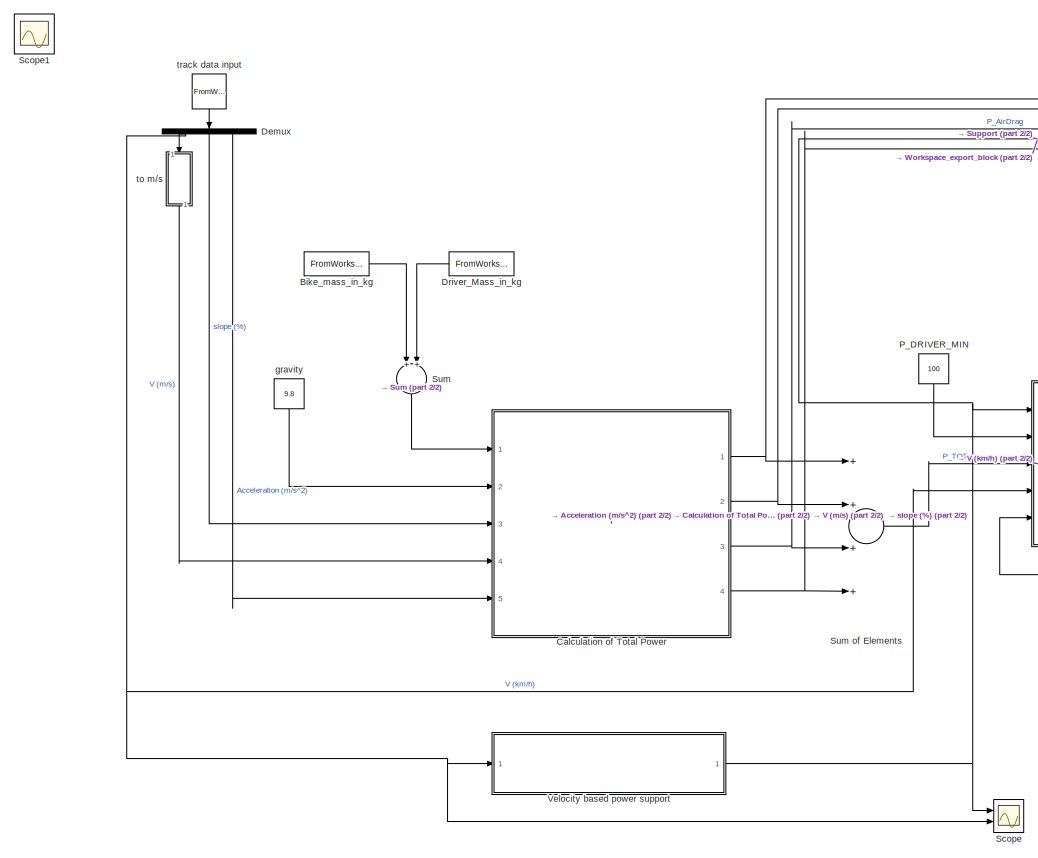
[diagram: root canvas - part 1/2, left side, full height]
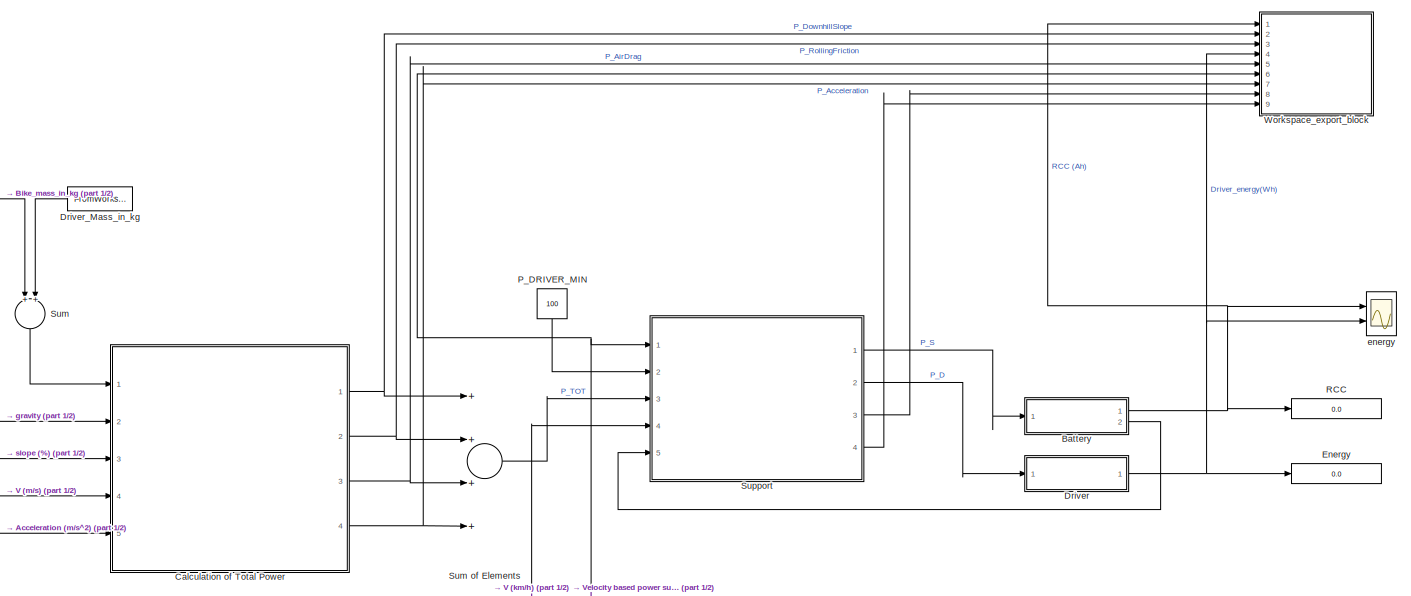
[diagram: root canvas - part 2/2, full width, middle band]
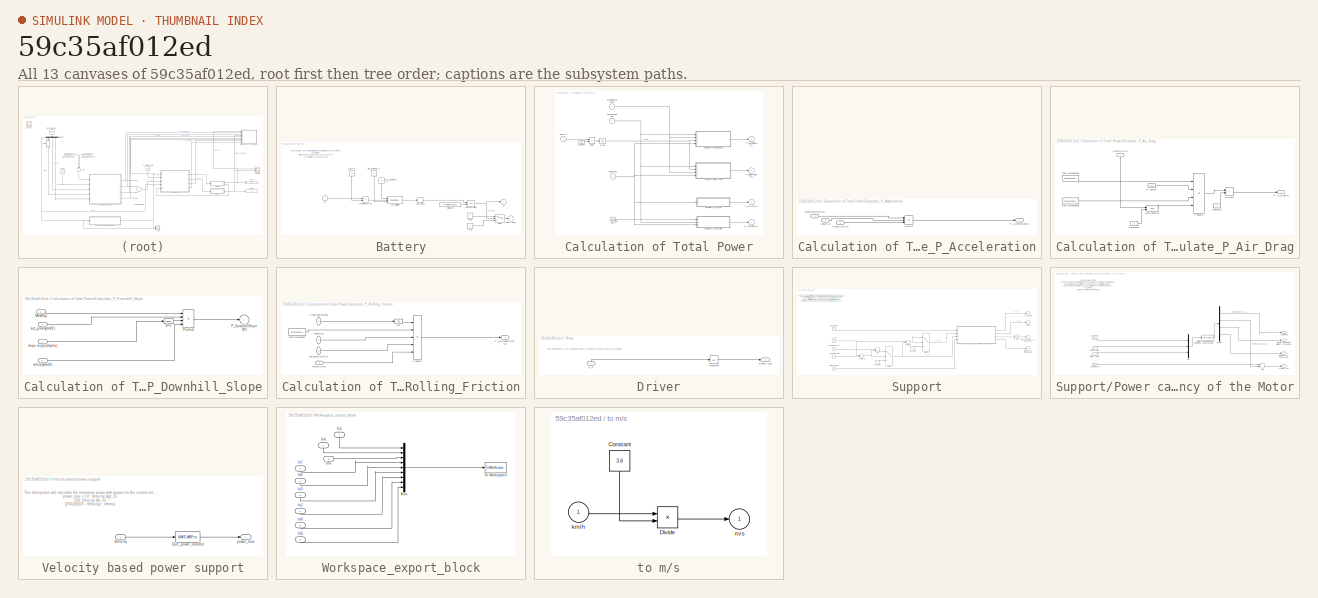
[diagram: thumbnail index - all 13 canvases of the model, root first then tree order]
MODEL slx_59c35af012ed
KIND model
CONFIG AbsTol = auto
CONFIG FixedStep = 0.001
CONFIG MaxStep = 0.001
CONFIG MinStep = 0.001
CONFIG RelTol = 1e-3
CONFIG SampleTimeConstraint = Unconstrained
CONFIG Solver = ode3
CONFIG SolverMode = Auto
CONFIG SolverName = ode3
CONFIG StartTime = 0.0
CONFIG StopTime = 1
BLOCK [SubSystem] Battery
  Ports = [1, 2]
  RequestExecContextInheritance = off
  Variant = off
BLOCK [Outport] Battery/Ah
  IconDisplay = Port number
BLOCK [Outport] Battery/Battery_Empty
  IconDisplay = Port number
  Port = 2
BLOCK [Constant] Battery/False
  Value = 0
BLOCK [FromWorkspace] Battery/Initial value 
  SampleTime = 0
  VariableName = Initial_Batt_capacity
  ZeroCross = on
BLOCK [Integrator] Battery/Integrator Limited
  InitialConditionSource = external
  LimitOutput = on
  LowerSaturationLimit = 0
  Ports = [2, 1]
  UpperSaturationLimit = 11
BLOCK [Constant] Battery/MAX_CURRENT (A)
  Value = 11
BLOCK [Constant] Battery/MIN_CURRENT (A)
  Value = 0
BLOCK [Inport] Battery/P_S
  IconDisplay = Port number
BLOCK [Switch] Battery/Switch
  Criteria = u2 > Threshold
  InputSameDT = off
  SaturateOnIntegerOverflow = off
BLOCK [Constant] Battery/True
BLOCK [Constant] Battery/U_BAT (V)
  Value = 36
BLOCK [UnaryMinus] Battery/Unary Minus
BLOCK [Product] Battery/compute current
  InputSameDT = off
  Inputs = */
  OutDataTypeStr = Inherit: Inherit via internal rule
  Ports = [2, 1]
  RndMeth = Floor
  SaturateOnIntegerOverflow = off
BLOCK [Reference] Battery/current limiter  REF=simulink/Discontinuities/Saturation
Dynamic
  Ports = [3, 1]
  SourceBlock = simulink/Discontinuities/Saturation\nDynamic
  SourceType = Saturation Dynamic
BLOCK [FromWorkspace] Bike_mass_in_kg
  SampleTime = 0
  VariableName = Bike_Mass
  ZeroCross = on
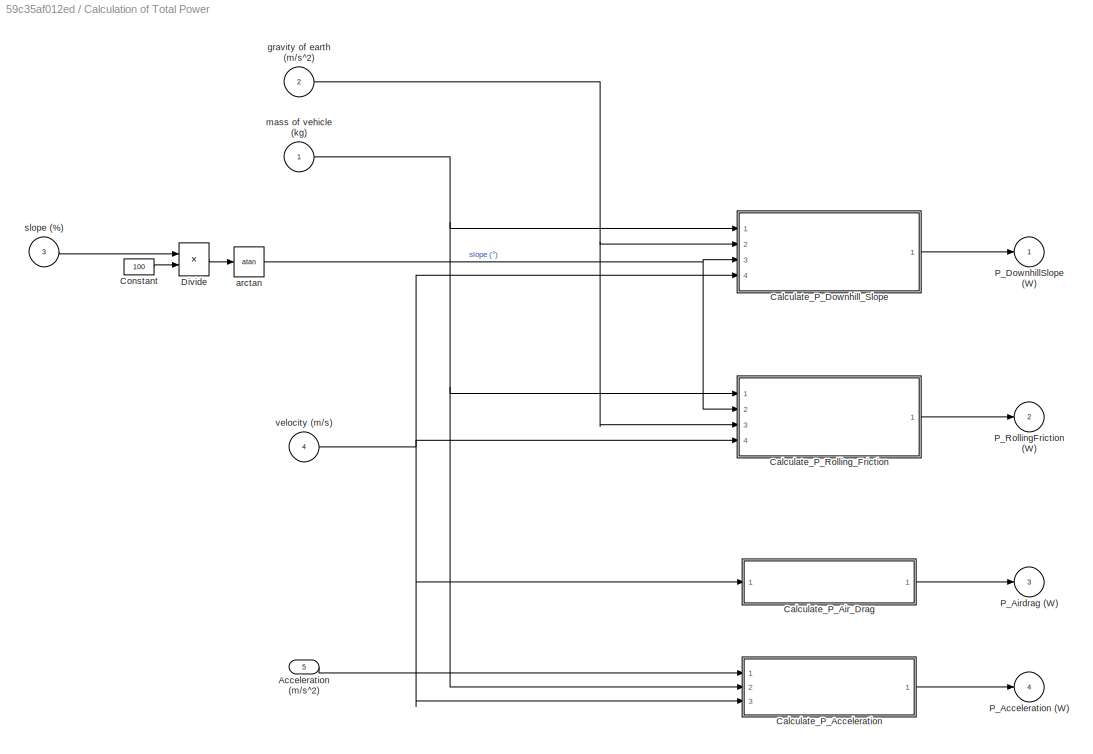
BLOCK [SubSystem] Calculation of Total Power
  Ports = [5, 4]
  RequestExecContextInheritance = off
  Variant = off
BLOCK [Inport] Calculation of Total Power/Acceleration (m//s^2)
  IconDisplay = Port number
  Port = 5
BLOCK [SubSystem] Calculation of Total Power/Calculate_P_Acceleration
  Ports = [3, 1]
  RequestExecContextInheritance = off
  Variant = off
BLOCK [Inport] Calculation of Total Power/Calculate_P_Acceleration/Mass(Kg)
  IconDisplay = Port number
  Port = 2
BLOCK [Product] Calculation of Total Power/Calculate_P_Acceleration/P=m.a.v
  InputSameDT = off
  Inputs = 3
  OutDataTypeStr = Inherit: Inherit via internal rule
  Ports = [3, 1]
  RndMeth = Floor
  SaturateOnIntegerOverflow = off
BLOCK [Outport] Calculation of Total Power/Calculate_P_Acceleration/P_Acceleration(W) 
  IconDisplay = Port number
BLOCK [Inport] Calculation of Total Power/Calculate_P_Acceleration/Velocity(m//s^2)
  IconDisplay = Port number
  Port = 3
BLOCK [Inport] Calculation of Total Power/Calculate_P_Acceleration/acceleration(m//s^2)
  IconDisplay = Port number
BLOCK [SubSystem] Calculation of Total Power/Calculate_P_Air_Drag
  Ports = [1, 1]
  RequestExecContextInheritance = off
  Variant = off
BLOCK [Constant] Calculation of Total Power/Calculate_P_Air_Drag/Air density
  Value = 1.225
BLOCK [Constant] Calculation of Total Power/Calculate_P_Air_Drag/Constant1
  Value = 2
BLOCK [Constant] Calculation of Total Power/Calculate_P_Air_Drag/Constant3
  Value = 3
BLOCK [Product] Calculation of Total Power/Calculate_P_Air_Drag/Divide1
  InputSameDT = off
  Inputs = */
  OutDataTypeStr = Inherit: Inherit via internal rule
  Ports = [2, 1]
BLOCK [FromWorkspace] Calculation of Total Power/Calculate_P_Air_Drag/From Workspace1
  SampleTime = 0
  VariableName = coeff_airdrag
  ZeroCross = on
BLOCK [FromWorkspace] Calculation of Total Power/Calculate_P_Air_Drag/From Workspace2
  SampleTime = 0
  VariableName = frontal_area
  ZeroCross = on
BLOCK [Math] Calculation of Total Power/Calculate_P_Air_Drag/Math Function
  Operator = pow
  Ports = [2, 1]
BLOCK [Outport] Calculation of Total Power/Calculate_P_Air_Drag/P_AirDrag(W) 
  IconDisplay = Port number
BLOCK [Product] Calculation of Total Power/Calculate_P_Air_Drag/Product3
  InputSameDT = off
  Inputs = 4
  OutDataTypeStr = Inherit: Inherit via internal rule
  Ports = [4, 1]
  RndMeth = Floor
  SaturateOnIntegerOverflow = off
BLOCK [Inport] Calculation of Total Power/Calculate_P_Air_Drag/Velocity(m//s)
  IconDisplay = Port number
BLOCK [SubSystem] Calculation of Total Power/Calculate_P_Downhill_Slope
  Ports = [4, 1]
  RequestExecContextInheritance = off
  Variant = off
BLOCK [Inport] Calculation of Total Power/Calculate_P_Downhill_Slope/Mass(Kg)
  IconDisplay = Port number
BLOCK [Outport] Calculation of Total Power/Calculate_P_Downhill_Slope/P_DownhillSlope (W)
  IconDisplay = Port number
BLOCK [Product] Calculation of Total Power/Calculate_P_Downhill_Slope/Product
  InputSameDT = off
  Inputs = 4
  OutDataTypeStr = Inherit: Inherit via internal rule
  Ports = [4, 1]
  RndMeth = Floor
  SaturateOnIntegerOverflow = off
BLOCK [Inport] Calculation of Total Power/Calculate_P_Downhill_Slope/acc_gravity(m//s^2)
  IconDisplay = Port number
  Port = 2
BLOCK [Trigonometry] Calculation of Total Power/Calculate_P_Downhill_Slope/sine
  Ports = [1, 1]
BLOCK [Inport] Calculation of Total Power/Calculate_P_Downhill_Slope/slope angle(alpha)
  IconDisplay = Port number
  Port = 3
BLOCK [Inport] Calculation of Total Power/Calculate_P_Downhill_Slope/velocity(m//s^2)
  IconDisplay = Port number
  Port = 4
BLOCK [SubSystem] Calculation of Total Power/Calculate_P_Rolling_Friction
  Ports = [4, 1]
  RequestExecContextInheritance = off
  Variant = off
BLOCK [FromWorkspace] Calculation of Total Power/Calculate_P_Rolling_Friction/From Workspace
  SampleTime = 0
  VariableName = coeff_friction
  ZeroCross = on
BLOCK [Inport] Calculation of Total Power/Calculate_P_Rolling_Friction/Mass(Kg)
  IconDisplay = Port number
BLOCK [Outport] Calculation of Total Power/Calculate_P_Rolling_Friction/P_RollingFriction (W)
  IconDisplay = Port number
BLOCK [Product] Calculation of Total Power/Calculate_P_Rolling_Friction/Product2
  InputSameDT = off
  Inputs = 5
  OutDataTypeStr = Inherit: Inherit via internal rule
  Ports = [5, 1]
  RndMeth = Floor
  SaturateOnIntegerOverflow = off
BLOCK [Inport] Calculation of Total Power/Calculate_P_Rolling_Friction/Slope angle(alpha)
  IconDisplay = Port number
  Port = 2
BLOCK [Inport] Calculation of Total Power/Calculate_P_Rolling_Friction/acc_gravity(m//s^2)
  IconDisplay = Port number
  Port = 3
BLOCK [Trigonometry] Calculation of Total Power/Calculate_P_Rolling_Friction/cos
  Operator = cos
  Ports = [1, 1]
BLOCK [Inport] Calculation of Total Power/Calculate_P_Rolling_Friction/velocity(m//s)
  IconDisplay = Port number
  Port = 4
BLOCK [Constant] Calculation of Total Power/Constant
  Value = 100
BLOCK [Product] Calculation of Total Power/Divide
  InputSameDT = off
  Inputs = */
  OutDataTypeStr = Inherit: Inherit via internal rule
  Ports = [2, 1]
  RndMeth = Floor
  SaturateOnIntegerOverflow = off
BLOCK [Outport] Calculation of Total Power/P_Acceleration (W)
  IconDisplay = Port number
  Port = 4
BLOCK [Outport] Calculation of Total Power/P_Airdrag (W)
  IconDisplay = Port number
  Port = 3
BLOCK [Outport] Calculation of Total Power/P_DownhillSlope (W)
  IconDisplay = Port number
BLOCK [Outport] Calculation of Total Power/P_RollingFriction (W)
  IconDisplay = Port number
  Port = 2
BLOCK [Trigonometry] Calculation of Total Power/arctan
  Operator = atan
  Ports = [1, 1]
BLOCK [Inport] Calculation of Total Power/gravity of earth (m//s^2) 
  IconDisplay = Port number
  Port = 2
BLOCK [Inport] Calculation of Total Power/mass of vehicle (kg)
  IconDisplay = Port number
BLOCK [Inport] Calculation of Total Power/slope (%)
  IconDisplay = Port number
  Port = 3
BLOCK [Inport] Calculation of Total Power/velocity (m//s)
  IconDisplay = Port number
  Port = 4
BLOCK [Demux] Demux
  DisplayOption = bar
  Outputs = 3
  Ports = [1, 3]
BLOCK [SubSystem] Driver
  Ports = [1, 1]
  RequestExecContextInheritance = off
  Variant = off
BLOCK [Outport] Driver/Energy (Wh)
  IconDisplay = Port number
BLOCK [Integrator] Driver/Integrator 
  LowerSaturationLimit = 0
  Ports = [1, 1]
  UpperSaturationLimit = 400
BLOCK [Inport] Driver/P_D
  IconDisplay = Port number
BLOCK [FromWorkspace] Driver_Mass_in_kg
  SampleTime = 0
  VariableName = Driver_Mass
  ZeroCross = on
BLOCK [Display] Energy
  Decimation = 1
  Ports = [1]
BLOCK [Constant] P_DRIVER_MIN
  Value = 100
BLOCK [Display] RCC
  Decimation = 1
  Ports = [1]
BLOCK [Scope] Scope
  NumInputPorts = 2
  Ports = [2]
  ScopeSpecificationString = C++SS(StrPVP('Location','[483, 185, 1439, 605]'),StrPVP('Open','off'),MxPVP('AxesTitles',24,'struct(''axes1'',''%<SignalLabel>'',''axes2'',''%<SignalLabel>'')'),MxPVP('ScopeGraphics',28,'struct(''FigureColor'',''[0.156862745098039 0.156862745098039 0.156862745098039]'',''AxesColor'',''[0 0 0]'',''AxesTickColor'',''[0.686274509803922 0.686274509803922 0.686274509803922]'',''LineColors'',''[1 1 0;1 ...<+422ch>
BLOCK [Scope] Scope1
  IOType = viewer
  Ports = []
  ScopeSpecificationString = C++SS(StrPVP('Location','[659, 344, 1617, 1140]'),StrPVP('Open','off'),MxPVP('AxesTitles',24,'struct(''axes1'',''%<SignalLabel>'',''axes2'',''%<SignalLabel>'',''axes3'',''%<SignalLabel>'',''axes4'',''%<SignalLabel>'',''axes5'',''%<SignalLabel>'')'),StrPVP('ShowDataMarkers','off'),StrPVP('ShowLegends','on'),StrPVP('TimeRange','2'),StrPVP('YMin','-3.22413~-8.58249~-525.14304~-31.25~-10.01716'),StrPV...<+245ch>
BLOCK [Sum] Sum 
  InputSameDT = off
  OutDataTypeStr = Inherit: Inherit via internal rule
  Ports = [2, 1]
  SaturateOnIntegerOverflow = off
BLOCK [Sum] Sum of Elements
  InputSameDT = off
  Inputs = ++++
  OutDataTypeStr = Inherit: Inherit via internal rule
  Ports = [4, 1]
  SaturateOnIntegerOverflow = off
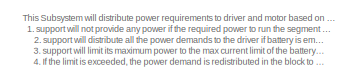
[diagram: Support - part 1/3, top left region]
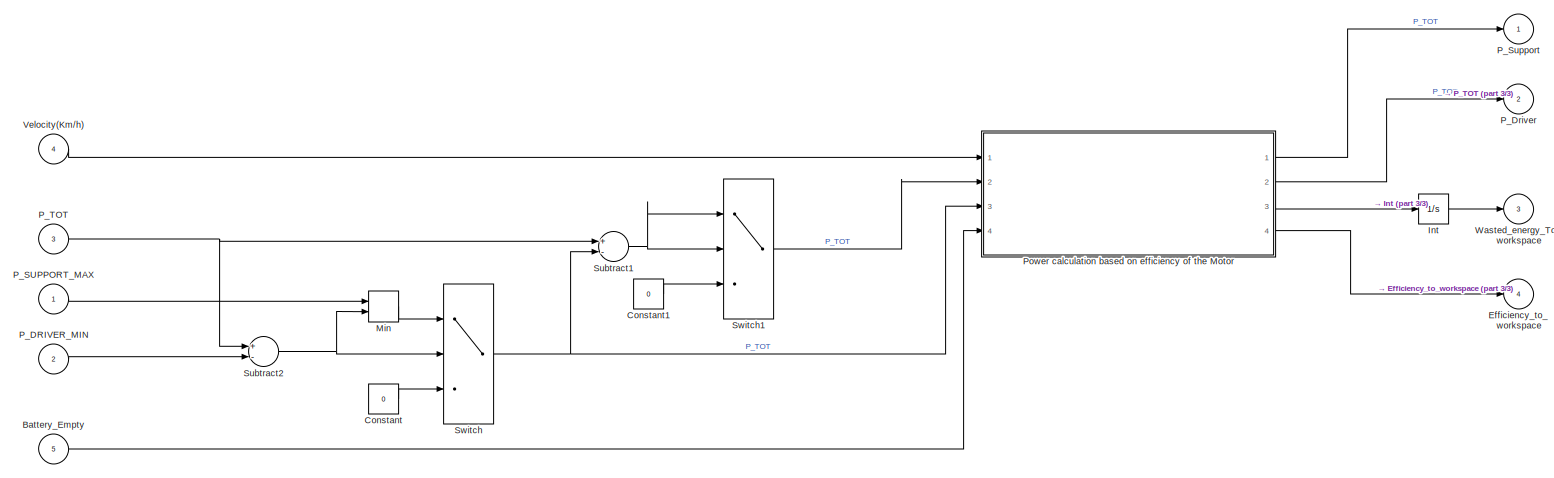
[diagram: Support - part 2/3, most of the canvas]
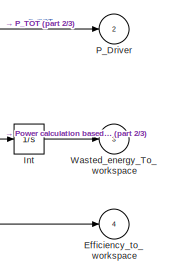
[diagram: Support - part 3/3, middle right region]
BLOCK [SubSystem] Support
  Ports = [5, 4]
  RequestExecContextInheritance = off
  Variant = off
BLOCK [Inport] Support/Battery_Empty
  IconDisplay = Port number
  Port = 5
BLOCK [Constant] Support/Constant
  Value = 0
BLOCK [Constant] Support/Constant1
  Value = 0
BLOCK [Outport] Support/Efficiency_to_workspace
  IconDisplay = Port number
  Port = 4
BLOCK [Integrator] Support/Int
  Ports = [1, 1]
BLOCK [MinMax] Support/Min
  InputSameDT = off
  Inputs = 2
  Ports = [2, 1]
  SaturateOnIntegerOverflow = off
BLOCK [Inport] Support/P_DRIVER_MIN
  IconDisplay = Port number
  Port = 2
BLOCK [Outport] Support/P_Driver
  IconDisplay = Port number
  Port = 2
BLOCK [Inport] Support/P_SUPPORT_MAX
  IconDisplay = Port number
BLOCK [Outport] Support/P_Support
  IconDisplay = Port number
BLOCK [Inport] Support/P_TOT
  IconDisplay = Port number
  Port = 3
BLOCK [SubSystem] Support/Power calculation based on efficiency of the Motor
  Ports = [4, 4]
  RequestExecContextInheritance = off
  Variant = off
BLOCK [Sum] Support/Power calculation based on efficiency of the Motor/Add
  InputSameDT = off
  OutDataTypeStr = Inherit: Inherit via internal rule
  Ports = [2, 1]
  SaturateOnIntegerOverflow = off
BLOCK [Inport] Support/Power calculation based on efficiency of the Motor/Battery_Empty
  IconDisplay = Port number
  Port = 4
BLOCK [Demux] Support/Power calculation based on efficiency of the Motor/Demux
  DisplayOption = bar
  Ports = [1, 4]
BLOCK [MATLABFcn] Support/Power calculation based on efficiency of the Motor/Efficiency based on RPM outputs instantaneous power
  MATLABFcn = RPM_motor_power(u(1),u(2),u(3))
  Output1D = off
  Ports = [1, 1]
BLOCK [Mux] Support/Power calculation based on efficiency of the Motor/Mux
  DisplayOption = bar
  Inputs = 3
  Ports = [3, 1]
BLOCK [Outport] Support/Power calculation based on efficiency of the Motor/P_Demand
  IconDisplay = Port number
BLOCK [Inport] Support/Power calculation based on efficiency of the Motor/P_Driver_in
  IconDisplay = Port number
  Port = 2
BLOCK [Outport] Support/Power calculation based on efficiency of the Motor/P_Driver_out
  IconDisplay = Port number
  Port = 2
BLOCK [Inport] Support/Power calculation based on efficiency of the Motor/P_Support
  IconDisplay = Port number
  Port = 3
BLOCK [Outport] Support/Power calculation based on efficiency of the Motor/Power_loss due to efficiency To_workspace
  IconDisplay = Port number
  Port = 3
BLOCK [Inport] Support/Power calculation based on efficiency of the Motor/Velocity(km//h)
  IconDisplay = Port number
BLOCK [Outport] Support/Power calculation based on efficiency of the Motor/effeciency_to_workspace
  IconDisplay = Port number
  Port = 4
BLOCK [Sum] Support/Subtract1
  InputSameDT = off
  Inputs = +-
  OutDataTypeStr = Inherit: Inherit via internal rule
  Ports = [2, 1]
  SaturateOnIntegerOverflow = off
BLOCK [Sum] Support/Subtract2
  InputSameDT = off
  Inputs = +-
  OutDataTypeStr = Inherit: Inherit via internal rule
  Ports = [2, 1]
  SaturateOnIntegerOverflow = off
BLOCK [Switch] Support/Switch
  Criteria = u2 > Threshold
  InputSameDT = off
  SaturateOnIntegerOverflow = off
BLOCK [Switch] Support/Switch1
  Criteria = u2 > Threshold
  InputSameDT = off
  SaturateOnIntegerOverflow = off
BLOCK [Inport] Support/Velocity(Km//h)
  IconDisplay = Port number
  Port = 4
BLOCK [Outport] Support/Wasted_energy_To_workspace
  IconDisplay = Port number
  Port = 3
BLOCK [SubSystem] Velocity based power support
  Ports = [1, 1]
  RequestExecContextInheritance = off
  Variant = off
BLOCK [MATLABFcn] Velocity based power support/Calc_power_needed
  MATLABFcn = calcpow
  OutputDimensions = 1
  Ports = [1, 1]
BLOCK [Inport] Velocity based power support/Velocity
  IconDisplay = Port number
BLOCK [Outport] Velocity based power support/power_max
  IconDisplay = Port number
BLOCK [SubSystem] Workspace_export_block
  Ports = [9]
  RequestExecContextInheritance = off
  Variant = off
BLOCK [Inport] Workspace_export_block/In1
  IconDisplay = Port number
BLOCK [Inport] Workspace_export_block/In2
  IconDisplay = Port number
  Port = 2
BLOCK [Inport] Workspace_export_block/In3
  IconDisplay = Port number
  Port = 3
BLOCK [Inport] Workspace_export_block/In4
  IconDisplay = Port number
  Port = 4
BLOCK [Inport] Workspace_export_block/In5
  IconDisplay = Port number
  Port = 5
BLOCK [Inport] Workspace_export_block/In6
  IconDisplay = Port number
  Port = 6
BLOCK [Inport] Workspace_export_block/In7
  IconDisplay = Port number
  Port = 7
BLOCK [Inport] Workspace_export_block/In8
  IconDisplay = Port number
  Port = 8
BLOCK [Inport] Workspace_export_block/In9
  IconDisplay = Port number
  Port = 9
BLOCK [Mux] Workspace_export_block/Mux
  DisplayOption = bar
  Inputs = 9
  Ports = [9, 1]
BLOCK [ToWorkspace] Workspace_export_block/To Workspace
  MaxDataPoints = inf
  Ports = [1]
  SampleTime = -1
  SaveFormat = Timeseries
  VariableName = simout
BLOCK [Scope] energy
  NumInputPorts = 2
  Ports = [2]
  ScopeSpecificationString = C++SS(StrPVP('Location','[413, 714, 1365, 1134]'),StrPVP('Open','off'),MxPVP('AxesTitles',24,'struct(''axes1'',''%<SignalLabel>'',''axes2'',''%<SignalLabel>'')'),MxPVP('ScopeGraphics',28,'struct(''FigureColor'',''[0.156862745098039 0.156862745098039 0.156862745098039]'',''AxesColor'',''[0 0 0]'',''AxesTickColor'',''[0.686274509803922 0.686274509803922 0.686274509803922]'',''LineColors'',''[1 1 0;1...<+415ch>
BLOCK [Constant] gravity
  Value = 9.8
BLOCK [SubSystem] to m//s
  Ports = [1, 1]
  RequestExecContextInheritance = off
  Variant = off
BLOCK [Constant] to m//s/Constant
  Value = 3.6
BLOCK [Product] to m//s/Divide
  InputSameDT = off
  Inputs = */
  OutDataTypeStr = Inherit: Inherit via internal rule
  Ports = [2, 1]
  RndMeth = Floor
  SaturateOnIntegerOverflow = off
BLOCK [Inport] to m//s/km//h
  IconDisplay = Port number
BLOCK [Outport] to m//s/m//s
  IconDisplay = Port number
BLOCK [FromWorkspace] track data input
  OutputAfterFinalValue = Setting to zero
  SampleTime = 0
  VariableName = simin
  ZeroCross = on
ANNOTATION Battery: The basic battery subsystem is modified to send a flag to the support system when battery is empty ( RCC = 0.0 ) Assumptions: Battery is a Bosch powerpack 400 (396Wh 36V) current limit to 11A (@ 1C discharge)
ANNOTATION Driver: This subsystem is to integrate power to display driver energy as a graph.
ANNOTATION Support: This Subsystem will distribute power requirements to driver and motor based on the following assumptions: 1. support will not provide any power if the required power to run the segment is below the driver's minimum power. 2. support will distribute all the power demands to the driver if battery is empty. 3. support will limit its maximum power to the max current limit of the battery based on the p...<+261ch>
ANNOTATION Support/Power calculation based on efficiency of the Motor: Subsystem description: This Subsystem calculates total power needed to overcome the losses of the motor and to support the driver. when the total power post efficiency exceeds the current limit of the battery system then the resulting power is recalculated and the difference prior to efficiency calculation has to be provided by the driver. Assumptions: 1. efficiency of motor at max RPM is 0.85 2. ...<+248ch>
ANNOTATION Velocity based power support: This Subsystem will calculate the maximum power with respect to the current velocity of the system as a linear function. power_max = { 0 : Velocity > 25 250: Velocity < 22 (250/(3))*(25 - Velocity) : others}
LINE Battery/False:1 -> Battery/Switch:1
LINE Battery/Initial value :1 -> Battery/Integrator Limited:2
NET Battery/Integrator Limited:1 -> Battery/Ah:1, Battery/Switch:2
LINE Battery/MAX_CURRENT (A):1 -> Battery/current limiter:1
LINE Battery/MIN_CURRENT (A):1 -> Battery/current limiter:3
LINE Battery/P_S:1 -> Battery/compute current:1
LINE Battery/Switch:1 -> Battery/Battery_Empty:1
LINE Battery/True:1 -> Battery/Switch:3
LINE Battery/U_BAT (V):1 -> Battery/compute current:2
LINE Battery/Unary Minus:1 -> Battery/Integrator Limited:1
LINE Battery/compute current:1 -> Battery/current limiter:2
LINE Battery/current limiter:1 -> Battery/Unary Minus:1
NET Battery:1 -> RCC:1, Workspace_export_block:1, energy:1
LINE Battery:2 -> Support:5
LINE Bike_mass_in_kg:1 -> Sum :1
LINE Calculation of Total Power/Acceleration (m//s^2):1 -> Calculation of Total Power/Calculate_P_Acceleration:1
LINE Calculation of Total Power/Calculate_P_Acceleration/Mass(Kg):1 -> Calculation of Total Power/Calculate_P_Acceleration/P=m.a.v:2
LINE Calculation of Total Power/Calculate_P_Acceleration/P=m.a.v:1 -> Calculation of Total Power/Calculate_P_Acceleration/P_Acceleration(W) :1
LINE Calculation of Total Power/Calculate_P_Acceleration/Velocity(m//s^2):1 -> Calculation of Total Power/Calculate_P_Acceleration/P=m.a.v:3
LINE Calculation of Total Power/Calculate_P_Acceleration/acceleration(m//s^2):1 -> Calculation of Total Power/Calculate_P_Acceleration/P=m.a.v:1
LINE Calculation of Total Power/Calculate_P_Acceleration:1 -> Calculation of Total Power/P_Acceleration (W):1
LINE Calculation of Total Power/Calculate_P_Air_Drag/Air density:1 -> Calculation of Total Power/Calculate_P_Air_Drag/Product3:2
LINE Calculation of Total Power/Calculate_P_Air_Drag/Constant1:1 -> Calculation of Total Power/Calculate_P_Air_Drag/Divide1:2
LINE Calculation of Total Power/Calculate_P_Air_Drag/Constant3:1 -> Calculation of Total Power/Calculate_P_Air_Drag/Math Function:2
LINE Calculation of Total Power/Calculate_P_Air_Drag/Divide1:1 -> Calculation of Total Power/Calculate_P_Air_Drag/P_AirDrag(W) :1
LINE Calculation of Total Power/Calculate_P_Air_Drag/From Workspace1:1 -> Calculation of Total Power/Calculate_P_Air_Drag/Product3:1
LINE Calculation of Total Power/Calculate_P_Air_Drag/From Workspace2:1 -> Calculation of Total Power/Calculate_P_Air_Drag/Product3:3
LINE Calculation of Total Power/Calculate_P_Air_Drag/Math Function:1 -> Calculation of Total Power/Calculate_P_Air_Drag/Product3:4
LINE Calculation of Total Power/Calculate_P_Air_Drag/Product3:1 -> Calculation of Total Power/Calculate_P_Air_Drag/Divide1:1
LINE Calculation of Total Power/Calculate_P_Air_Drag/Velocity(m//s):1 -> Calculation of Total Power/Calculate_P_Air_Drag/Math Function:1
LINE Calculation of Total Power/Calculate_P_Air_Drag:1 -> Calculation of Total Power/P_Airdrag (W):1
LINE Calculation of Total Power/Calculate_P_Downhill_Slope/Mass(Kg):1 -> Calculation of Total Power/Calculate_P_Downhill_Slope/Product:1
LINE Calculation of Total Power/Calculate_P_Downhill_Slope/Product:1 -> Calculation of Total Power/Calculate_P_Downhill_Slope/P_DownhillSlope (W):1
LINE Calculation of Total Power/Calculate_P_Downhill_Slope/acc_gravity(m//s^2):1 -> Calculation of Total Power/Calculate_P_Downhill_Slope/Product:2
LINE Calculation of Total Power/Calculate_P_Downhill_Slope/sine:1 -> Calculation of Total Power/Calculate_P_Downhill_Slope/Product:3
LINE Calculation of Total Power/Calculate_P_Downhill_Slope/slope angle(alpha):1 -> Calculation of Total Power/Calculate_P_Downhill_Slope/sine:1
LINE Calculation of Total Power/Calculate_P_Downhill_Slope/velocity(m//s^2):1 -> Calculation of Total Power/Calculate_P_Downhill_Slope/Product:4
LINE Calculation of Total Power/Calculate_P_Downhill_Slope:1 -> Calculation of Total Power/P_DownhillSlope (W):1
LINE Calculation of Total Power/Calculate_P_Rolling_Friction/From Workspace:1 -> Calculation of Total Power/Calculate_P_Rolling_Friction/Product2:2
LINE Calculation of Total Power/Calculate_P_Rolling_Friction/Mass(Kg):1 -> Calculation of Total Power/Calculate_P_Rolling_Friction/Product2:3
LINE Calculation of Total Power/Calculate_P_Rolling_Friction/Product2:1 -> Calculation of Total Power/Calculate_P_Rolling_Friction/P_RollingFriction (W):1
LINE Calculation of Total Power/Calculate_P_Rolling_Friction/Slope angle(alpha):1 -> Calculation of Total Power/Calculate_P_Rolling_Friction/cos:1
LINE Calculation of Total Power/Calculate_P_Rolling_Friction/acc_gravity(m//s^2):1 -> Calculation of Total Power/Calculate_P_Rolling_Friction/Product2:4
LINE Calculation of Total Power/Calculate_P_Rolling_Friction/cos:1 -> Calculation of Total Power/Calculate_P_Rolling_Friction/Product2:1
LINE Calculation of Total Power/Calculate_P_Rolling_Friction/velocity(m//s):1 -> Calculation of Total Power/Calculate_P_Rolling_Friction/Product2:5
LINE Calculation of Total Power/Calculate_P_Rolling_Friction:1 -> Calculation of Total Power/P_RollingFriction (W):1
LINE Calculation of Total Power/Constant:1 -> Calculation of Total Power/Divide:2
LINE Calculation of Total Power/Divide:1 -> Calculation of Total Power/arctan:1
NET Calculation of Total Power/arctan:1 -> Calculation of Total Power/Calculate_P_Downhill_Slope:3, Calculation of Total Power/Calculate_P_Rolling_Friction:2
NET Calculation of Total Power/gravity of earth (m//s^2) :1 -> Calculation of Total Power/Calculate_P_Downhill_Slope:2, Calculation of Total Power/Calculate_P_Rolling_Friction:3
NET Calculation of Total Power/mass of vehicle (kg):1 -> Calculation of Total Power/Calculate_P_Acceleration:2, Calculation of Total Power/Calculate_P_Downhill_Slope:1, Calculation of Total Power/Calculate_P_Rolling_Friction:1
LINE Calculation of Total Power/slope (%):1 -> Calculation of Total Power/Divide:1
NET Calculation of Total Power/velocity (m//s):1 -> Calculation of Total Power/Calculate_P_Acceleration:3, Calculation of Total Power/Calculate_P_Air_Drag:1, Calculation of Total Power/Calculate_P_Downhill_Slope:4, Calculation of Total Power/Calculate_P_Rolling_Friction:4
NET Calculation of Total Power:1 -> Sum of Elements:1, Workspace_export_block:2
NET Calculation of Total Power:2 -> Sum of Elements:2, Workspace_export_block:3
NET Calculation of Total Power:3 -> Sum of Elements:3, Workspace_export_block:5
NET Calculation of Total Power:4 -> Sum of Elements:4, Workspace_export_block:7
NET Demux:1 -> Scope:2, Support:4, Velocity based power support:1, to m//s:1
LINE Demux:2 -> Calculation of Total Power:3
LINE Demux:3 -> Calculation of Total Power:5
LINE Driver/Integrator :1 -> Driver/Energy (Wh):1
LINE Driver/P_D:1 -> Driver/Integrator :1
NET Driver:1 -> Energy:1, Workspace_export_block:4, energy:2
LINE Driver_Mass_in_kg:1 -> Sum :2
LINE P_DRIVER_MIN:1 -> Support:2
LINE Sum :1 -> Calculation of Total Power:1
LINE Sum of Elements:1 -> Support:3
LINE Support/Battery_Empty:1 -> Support/Power calculation based on efficiency of the Motor:4
LINE Support/Constant1:1 -> Support/Switch1:3
LINE Support/Constant:1 -> Support/Switch:3
LINE Support/Int:1 -> Support/Wasted_energy_To_workspace:1
LINE Support/Min:1 -> Support/Switch:1
LINE Support/P_DRIVER_MIN:1 -> Support/Subtract2:2
LINE Support/P_SUPPORT_MAX:1 -> Support/Min:1
NET Support/P_TOT:1 -> Support/Subtract1:1, Support/Subtract2:1
LINE Support/Power calculation based on efficiency of the Motor/Add:1 -> Support/Power calculation based on efficiency of the Motor/P_Driver_out:1
LINE Support/Power calculation based on efficiency of the Motor/Battery_Empty:1 -> Support/Power calculation based on efficiency of the Motor/Mux:3
LINE Support/Power calculation based on efficiency of the Motor/Demux:1 -> Support/Power calculation based on efficiency of the Motor/P_Demand:1
LINE Support/Power calculation based on efficiency of the Motor/Demux:2 -> Support/Power calculation based on efficiency of the Motor/Add:2
LINE Support/Power calculation based on efficiency of the Motor/Demux:3 -> Support/Power calculation based on efficiency of the Motor/Power_loss due to efficiency To_workspace:1
LINE Support/Power calculation based on efficiency of the Motor/Demux:4 -> Support/Power calculation based on efficiency of the Motor/effeciency_to_workspace:1
LINE Support/Power calculation based on efficiency of the Motor/Efficiency based on RPM outputs instantaneous power:1 -> Support/Power calculation based on efficiency of the Motor/Demux:1
LINE Support/Power calculation based on efficiency of the Motor/Mux:1 -> Support/Power calculation based on efficiency of the Motor/Efficiency based on RPM outputs instantaneous power:1
LINE Support/Power calculation based on efficiency of the Motor/P_Driver_in:1 -> Support/Power calculation based on efficiency of the Motor/Add:1
LINE Support/Power calculation based on efficiency of the Motor/P_Support:1 -> Support/Power calculation based on efficiency of the Motor/Mux:1
LINE Support/Power calculation based on efficiency of the Motor/Velocity(km//h):1 -> Support/Power calculation based on efficiency of the Motor/Mux:2
LINE Support/Power calculation based on efficiency of the Motor:1 -> Support/P_Support:1
LINE Support/Power calculation based on efficiency of the Motor:2 -> Support/P_Driver:1
LINE Support/Power calculation based on efficiency of the Motor:3 -> Support/Int:1
LINE Support/Power calculation based on efficiency of the Motor:4 -> Support/Efficiency_to_workspace:1
NET Support/Subtract1:1 -> Support/Switch1:1, Support/Switch1:2
NET Support/Subtract2:1 -> Support/Min:2, Support/Switch:2
LINE Support/Switch1:1 -> Support/Power calculation based on efficiency of the Motor:2
NET Support/Switch:1 -> Support/Power calculation based on efficiency of the Motor:3, Support/Subtract1:2
LINE Support/Velocity(Km//h):1 -> Support/Power calculation based on efficiency of the Motor:1
LINE Support:1 -> Battery:1
LINE Support:2 -> Driver:1
LINE Support:3 -> Workspace_export_block:8
LINE Support:4 -> Workspace_export_block:9
LINE Velocity based power support/Calc_power_needed:1 -> Velocity based power support/power_max:1
LINE Velocity based power support/Velocity:1 -> Velocity based power support/Calc_power_needed:1
NET Velocity based power support:1 -> Scope:1, Support:1, Workspace_export_block:6
LINE Workspace_export_block/In1:1 -> Workspace_export_block/Mux:1
LINE Workspace_export_block/In2:1 -> Workspace_export_block/Mux:7
LINE Workspace_export_block/In3:1 -> Workspace_export_block/Mux:6
LINE Workspace_export_block/In4:1 -> Workspace_export_block/Mux:2
LINE Workspace_export_block/In5:1 -> Workspace_export_block/Mux:5
LINE Workspace_export_block/In6:1 -> Workspace_export_block/Mux:3
LINE Workspace_export_block/In7:1 -> Workspace_export_block/Mux:4
LINE Workspace_export_block/In8:1 -> Workspace_export_block/Mux:8
LINE Workspace_export_block/In9:1 -> Workspace_export_block/Mux:9
LINE Workspace_export_block/Mux:1 -> Workspace_export_block/To Workspace:1
LINE gravity:1 -> Calculation of Total Power:2
LINE to m//s/Constant:1 -> to m//s/Divide:2
LINE to m//s/Divide:1 -> to m//s/m//s:1
LINE to m//s/km//h:1 -> to m//s/Divide:1
LINE to m//s:1 -> Calculation of Total Power:4
LINE track data input:1 -> Demux:1
note: NET lines group one-source signal fan-out (src -> all destinations, sorted); 1:1 wires keep LINE
